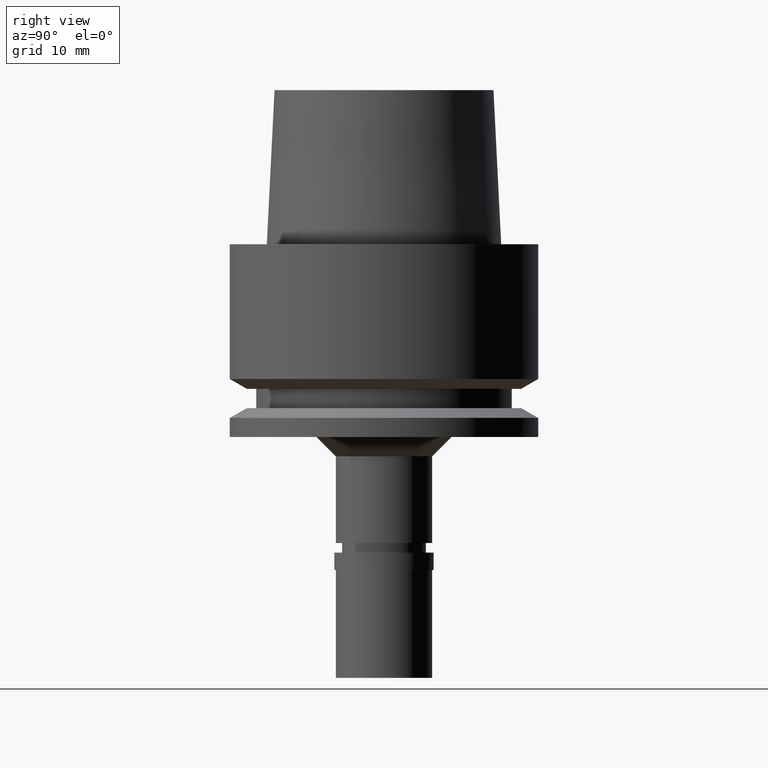
[diagram: clean part render]
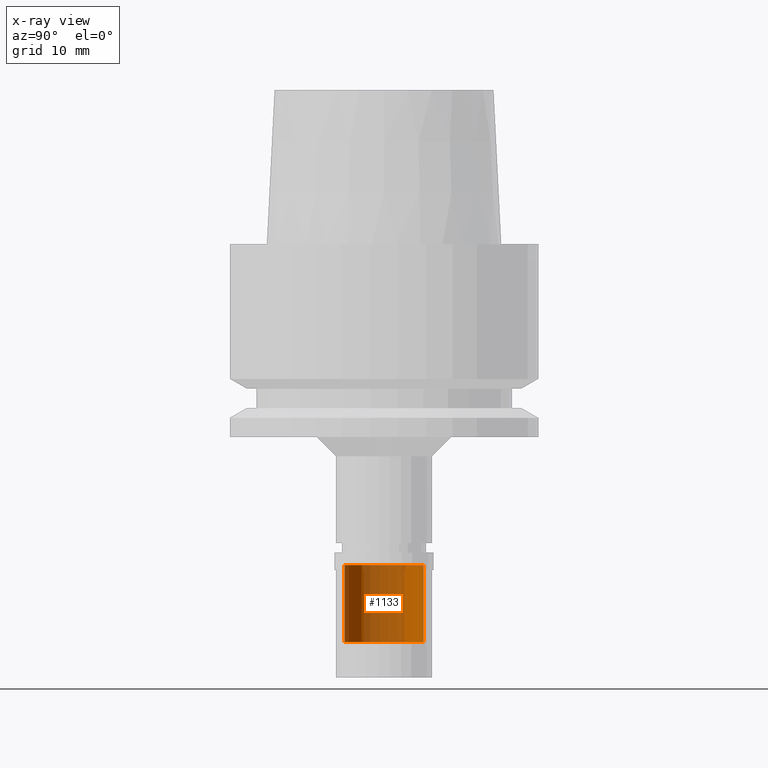
[diagram: x-ray — body ghosted, one internal face saturated and labeled with its STEP entity id]
A machine part, right view, then the same camera in x-ray: the body is ghosted and one INTERNAL B-rep face — a face not visible from any outside direction — is saturated and labeled: STEP entity #1133.
In plain terms, the highlighted cylindrical surface (partial cylindrical patch) has radius 4.1 mm, axis along (0, 0, 1).
Its self-contained STEP definition (entity closure, byte-faithful):
#11 = CARTESIAN_POINT ( 'NONE',  ( 0.0000000000000000000, 0.0000000000000000000, -33.30000000000000426 ) ) ;
#26 = VERTEX_POINT ( 'NONE', #575 ) ;
#31 = CARTESIAN_POINT ( 'NONE',  ( 0.0000000000000000000, 4.100000000000000533, -41.30000000000000426 ) ) ;
#48 = AXIS2_PLACEMENT_3D ( 'NONE', #58, #1704, #2104 ) ;
#58 = CARTESIAN_POINT ( 'NONE',  ( 0.0000000000000000000, 0.0000000000000000000, -44.16500000000000625 ) ) ;
#89 = CARTESIAN_POINT ( 'NONE',  ( 0.0000000000000000000, -4.100000000000000533, -33.30000000000000426 ) ) ;
#146 = EDGE_LOOP ( 'NONE', ( #735, #327, #1271, #1644 ) ) ;
#152 = EDGE_CURVE ( 'NONE', #2153, #1304, #2300, .T. ) ;
#161 = LINE ( 'NONE', #1842, #455 ) ;
#327 = ORIENTED_EDGE ( 'NONE', *, *, #2695, .F. ) ;
#455 = VECTOR ( 'NONE', #1418, 1000.000000000000000 ) ;
#575 = CARTESIAN_POINT ( 'NONE',  ( 0.0000000000000000000, -4.100000000000000533, -41.30000000000000426 ) ) ;
#587 = DIRECTION ( 'NONE',  ( 0.0000000000000000000, 0.0000000000000000000, -1.000000000000000000 ) ) ;
#640 = DIRECTION ( 'NONE',  ( 0.0000000000000000000, 0.0000000000000000000, -1.000000000000000000 ) ) ;
#735 = ORIENTED_EDGE ( 'NONE', *, *, #1257, .T. ) ;
#865 = FACE_OUTER_BOUND ( 'NONE', #146, .T. ) ;
#968 = VECTOR ( 'NONE', #587, 1000.000000000000000 ) ;
#979 = EDGE_CURVE ( 'NONE', #1304, #1076, #1215, .T. ) ;
#1076 = VERTEX_POINT ( 'NONE', #31 ) ;
#1094 = DIRECTION ( 'NONE',  ( 0.0000000000000000000, 0.0000000000000000000, 1.000000000000000000 ) ) ;
#1133 = ADVANCED_FACE ( 'NONE', ( #865 ), #1280, .T. ) ;
#1215 = LINE ( 'NONE', #2448, #968 ) ;
#1257 = EDGE_CURVE ( 'NONE', #1076, #26, #2621, .T. ) ;
#1271 = ORIENTED_EDGE ( 'NONE', *, *, #152, .T. ) ;
#1280 = CYLINDRICAL_SURFACE ( 'NONE', #48, 4.100000000000000533 ) ;
#1304 = VERTEX_POINT ( 'NONE', #2189 ) ;
#1308 = CARTESIAN_POINT ( 'NONE',  ( 0.0000000000000000000, 0.0000000000000000000, -41.30000000000000426 ) ) ;
#1355 = AXIS2_PLACEMENT_3D ( 'NONE', #11, #640, #1483 ) ;
#1418 = DIRECTION ( 'NONE',  ( 0.0000000000000000000, 0.0000000000000000000, -1.000000000000000000 ) ) ;
#1483 = DIRECTION ( 'NONE',  ( 0.0000000000000000000, -1.000000000000000000, 0.0000000000000000000 ) ) ;
#1623 = AXIS2_PLACEMENT_3D ( 'NONE', #1308, #1094, #1933 ) ;
#1644 = ORIENTED_EDGE ( 'NONE', *, *, #979, .T. ) ;
#1704 = DIRECTION ( 'NONE',  ( 0.0000000000000000000, 0.0000000000000000000, 1.000000000000000000 ) ) ;
#1842 = CARTESIAN_POINT ( 'NONE',  ( 0.0000000000000000000, -4.100000000000000533, -33.30000000000000426 ) ) ;
#1933 = DIRECTION ( 'NONE',  ( 0.0000000000000000000, 1.000000000000000000, 0.0000000000000000000 ) ) ;
#2104 = DIRECTION ( 'NONE',  ( 0.0000000000000000000, 1.000000000000000000, 0.0000000000000000000 ) ) ;
#2153 = VERTEX_POINT ( 'NONE', #89 ) ;
#2189 = CARTESIAN_POINT ( 'NONE',  ( 0.0000000000000000000, 4.100000000000000533, -33.30000000000000426 ) ) ;
#2300 = CIRCLE ( 'NONE', #1355, 4.100000000000000533 ) ;
#2448 = CARTESIAN_POINT ( 'NONE',  ( 0.0000000000000000000, 4.100000000000000533, -33.30000000000000426 ) ) ;
#2621 = CIRCLE ( 'NONE', #1623, 4.100000000000000533 ) ;
#2695 = EDGE_CURVE ( 'NONE', #2153, #26, #161, .T. ) ;